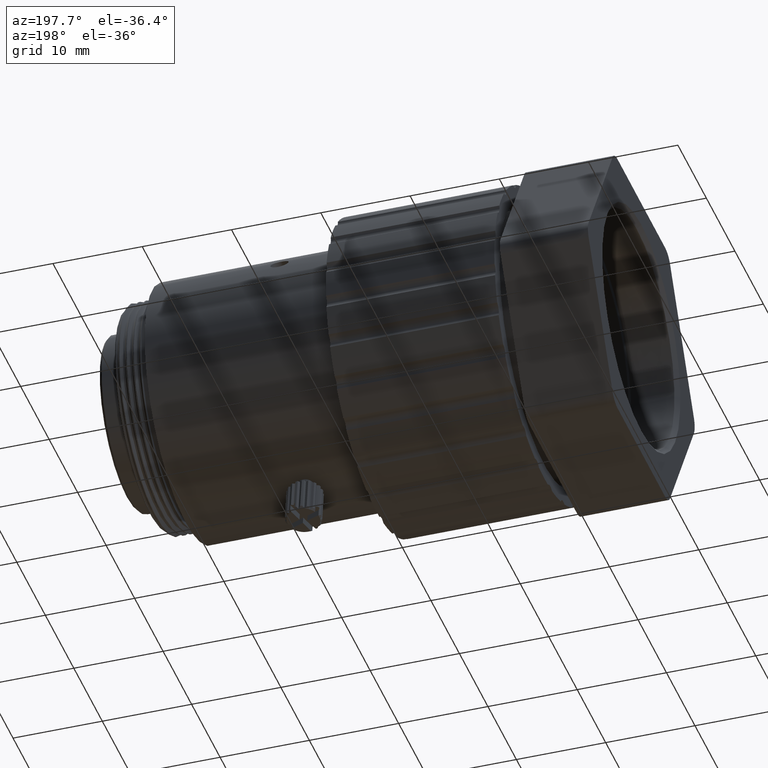
[diagram: clean part render]
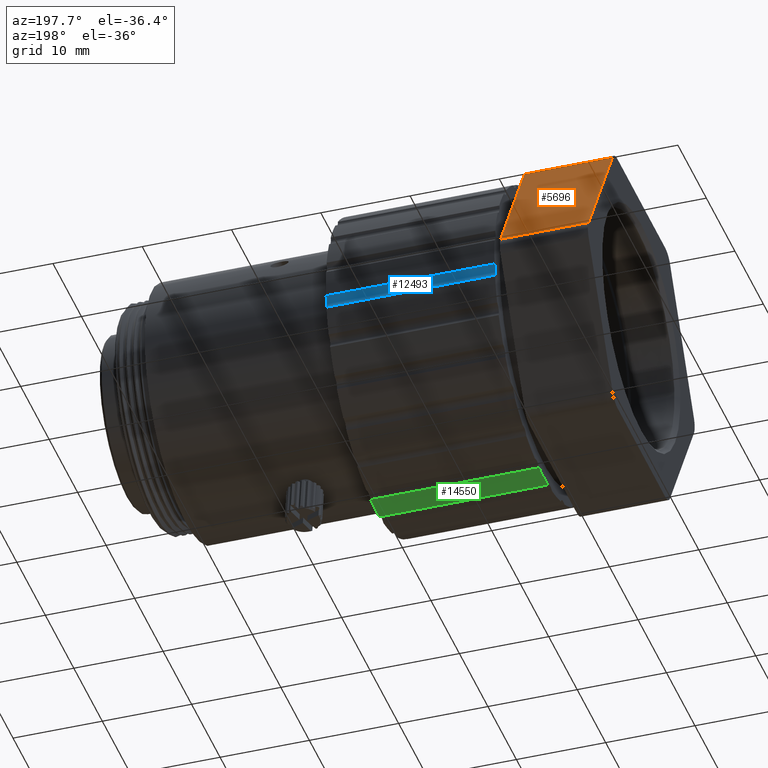
[diagram: same view with three faces highlighted in distinct colors, each labeled with its STEP entity id]
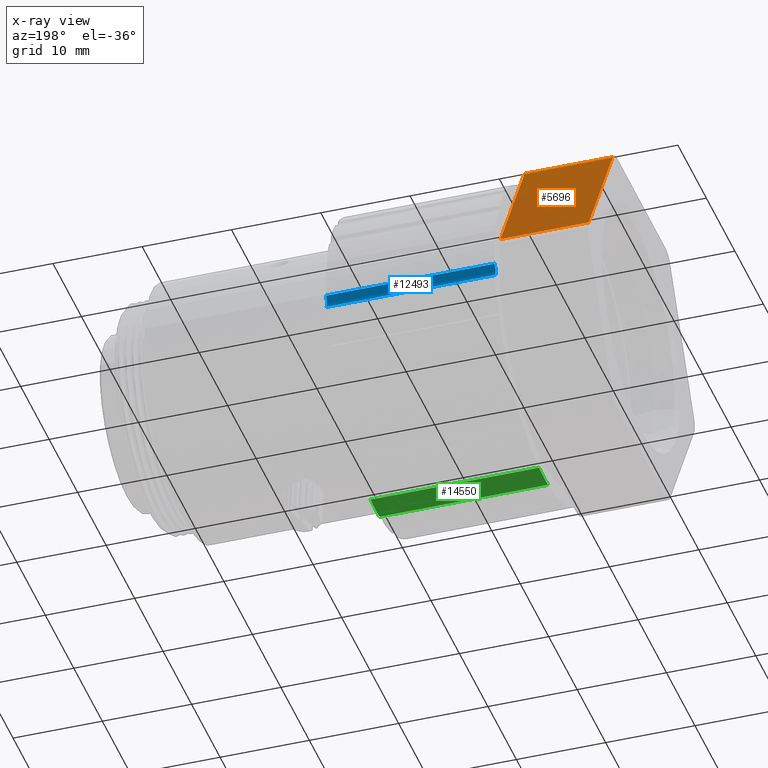
[diagram: x-ray of the same camera — body ghosted, the three highlighted faces saturated]
A machine part, auxiliary view with three faces highlighted in distinct colors.
The next image is the same camera in x-ray (body ghosted, the three faces saturated) — at least one of them is partly hidden behind the body in this view.
Their STEP definitions:

[orange] entity #5696 — the highlighted planar face has unit normal (0, 0.866, 0.5).
#570 = EDGE_CURVE ( 'NONE', #14892, #6627, #10362, .T. ) ;
#854 = DIRECTION ( 'NONE',  ( 1.000000000000000000, -0.000000000000000000, -0.000000000000000000 ) ) ;
#960 = CARTESIAN_POINT ( 'NONE',  ( -27.91612139076748988, 11.71228236505861275, 0.9999999999998759881 ) ) ;
#2005 = VECTOR ( 'NONE', #2338, 1000.000000000000114 ) ;
#2338 = DIRECTION ( 'NONE',  ( 0.000000000000000000, 0.5000000000000054401, -0.8660254037844354880 ) ) ;
#2811 = ORIENTED_EDGE ( 'NONE', *, *, #10207, .T. ) ;
#3116 = ORIENTED_EDGE ( 'NONE', *, *, #570, .F. ) ;
#3216 = VECTOR ( 'NONE', #12704, 1000.000000000000000 ) ;
#3509 = CARTESIAN_POINT ( 'NONE',  ( -27.91612139076748988, 3.340703461808480768, 15.50000000000068390 ) ) ;
#3680 = VECTOR ( 'NONE', #12952, 999.9999999999998863 ) ;
#4215 = ORIENTED_EDGE ( 'NONE', *, *, #12738, .T. ) ;
#4826 = CARTESIAN_POINT ( 'NONE',  ( -37.78612033146355742, 2.763353192619000254, 16.50000000000062172 ) ) ;
#4925 = EDGE_LOOP ( 'NONE', ( #7272, #4215, #2811, #3116 ) ) ;
#5657 = CARTESIAN_POINT ( 'NONE',  ( -37.78612033146355742, 11.71228236505861275, 0.9999999999999267253 ) ) ;
#5696 = ADVANCED_FACE ( 'NONE', ( #7144 ), #11877, .T. ) ;
#6413 = EDGE_CURVE ( 'NONE', #14892, #11731, #14348, .T. ) ;
#6627 = VERTEX_POINT ( 'NONE', #960 ) ;
#6738 = CARTESIAN_POINT ( 'NONE',  ( 22.49221125374778296, 3.340703461808480768, 15.50000000000077627 ) ) ;
#7144 = FACE_OUTER_BOUND ( 'NONE', #4925, .T. ) ;
#7272 = ORIENTED_EDGE ( 'NONE', *, *, #6413, .T. ) ;
#9460 = CARTESIAN_POINT ( 'NONE',  ( 22.49221125374778296, 2.763353192619000254, 16.50000000000062172 ) ) ;
#10207 = EDGE_CURVE ( 'NONE', #10264, #6627, #15256, .T. ) ;
#10264 = VERTEX_POINT ( 'NONE', #11929 ) ;
#10336 = VECTOR ( 'NONE', #854, 1000.000000000000000 ) ;
#10362 = LINE ( 'NONE', #13929, #10336 ) ;
#11731 = VERTEX_POINT ( 'NONE', #14084 ) ;
#11827 = AXIS2_PLACEMENT_3D ( 'NONE', #9460, #14274, #12958 ) ;
#11877 = PLANE ( 'NONE',  #11827 ) ;
#11929 = CARTESIAN_POINT ( 'NONE',  ( -27.91612139076748988, 3.340703461808480768, 15.50000000000061817 ) ) ;
#12704 = DIRECTION ( 'NONE',  ( 1.000000000000000000, 0.000000000000000000, -0.000000000000000000 ) ) ;
#12738 = EDGE_CURVE ( 'NONE', #11731, #10264, #12775, .T. ) ;
#12775 = LINE ( 'NONE', #6738, #3216 ) ;
#12952 = DIRECTION ( 'NONE',  ( 0.000000000000000000, -0.5000000000000085487, 0.8660254037844338226 ) ) ;
#12958 = DIRECTION ( 'NONE',  ( 0.000000000000000000, -0.5000000000000085487, 0.8660254037844338226 ) ) ;
#13929 = CARTESIAN_POINT ( 'NONE',  ( 22.49221125374778296, 11.71228236505861275, 1.000000000000165867 ) ) ;
#14084 = CARTESIAN_POINT ( 'NONE',  ( -37.78612033146355742, 3.340703461808480768, 15.50000000000065548 ) ) ;
#14274 = DIRECTION ( 'NONE',  ( 0.000000000000000000, 0.8660254037844338226, 0.5000000000000085487 ) ) ;
#14348 = LINE ( 'NONE', #4826, #3680 ) ;
#14892 = VERTEX_POINT ( 'NONE', #5657 ) ;
#15256 = LINE ( 'NONE', #3509, #2005 ) ;

[blue] entity #12493 — the highlighted cylindrical surface (edge-blend (fillet) strip) has radius 1 mm, axis along (-1, 0, -0).
#399 = DIRECTION ( 'NONE',  ( -1.000000000000000000, 0.000000000000000000, -0.000000000000000000 ) ) ;
#1267 = DIRECTION ( 'NONE',  ( 0.000000000000000000, -0.1454526080881509698, 0.9893652201287223003 ) ) ;
#1553 = EDGE_CURVE ( 'NONE', #6537, #8084, #5649, .T. ) ;
#2508 = ORIENTED_EDGE ( 'NONE', *, *, #14674, .F. ) ;
#2749 = DIRECTION ( 'NONE',  ( -1.000000000000000000, 0.000000000000000000, -0.000000000000000000 ) ) ;
#4436 = AXIS2_PLACEMENT_3D ( 'NONE', #14497, #2749, #1267 ) ;
#4505 = CARTESIAN_POINT ( 'NONE',  ( -8.031010005843386423, 10.68680943056676824, -1.325414921205414487 ) ) ;
#4582 = EDGE_LOOP ( 'NONE', ( #7630, #6403, #6985, #2508 ) ) ;
#4622 = DIRECTION ( 'NONE',  ( -1.000000000000000000, 0.000000000000000000, -0.000000000000000000 ) ) ;
#5333 = VECTOR ( 'NONE', #4622, 1000.000000000000000 ) ;
#5649 = LINE ( 'NONE', #15156, #5333 ) ;
#6235 = CIRCLE ( 'NONE', #8191, 1.000000000000124789 ) ;
#6403 = ORIENTED_EDGE ( 'NONE', *, *, #14571, .F. ) ;
#6537 = VERTEX_POINT ( 'NONE', #4505 ) ;
#6985 = ORIENTED_EDGE ( 'NONE', *, *, #1553, .F. ) ;
#7630 = ORIENTED_EDGE ( 'NONE', *, *, #11889, .F. ) ;
#7728 = DIRECTION ( 'NONE',  ( 1.000000000000000000, -0.000000000000000000, 0.000000000000000000 ) ) ;
#8084 = VERTEX_POINT ( 'NONE', #11392 ) ;
#8191 = AXIS2_PLACEMENT_3D ( 'NONE', #13162, #399, #8509 ) ;
#8289 = CYLINDRICAL_SURFACE ( 'NONE', #4436, 1.000000000000124789 ) ;
#8509 = DIRECTION ( 'NONE',  ( 0.000000000000000000, -0.1454526080881509698, 0.9893652201287223003 ) ) ;
#9216 = DIRECTION ( 'NONE',  ( 1.000000000000000000, -0.000000000000000000, 0.000000000000000000 ) ) ;
#9846 = FACE_OUTER_BOUND ( 'NONE', #4582, .T. ) ;
#9895 = LINE ( 'NONE', #9973, #11575 ) ;
#9973 = CARTESIAN_POINT ( 'NONE',  ( -32.35023582608875614, 10.52498016070835263, -2.716301155853972915 ) ) ;
#10386 = CARTESIAN_POINT ( 'NONE',  ( -26.91612139076693211, 11.31512142755219941, -2.103376381975663456 ) ) ;
#11392 = CARTESIAN_POINT ( 'NONE',  ( -26.91612139076693211, 10.68680943056676824, -1.325414921205414487 ) ) ;
#11412 = AXIS2_PLACEMENT_3D ( 'NONE', #10386, #9216, #13946 ) ;
#11575 = VECTOR ( 'NONE', #7728, 1000.000000000000000 ) ;
#11889 = EDGE_CURVE ( 'NONE', #14835, #13877, #9895, .T. ) ;
#12493 = ADVANCED_FACE ( 'NONE', ( #9846 ), #8289, .F. ) ;
#12833 = CARTESIAN_POINT ( 'NONE',  ( -8.031010005843386423, 10.52498016070835263, -2.716301155852862692 ) ) ;
#13162 = CARTESIAN_POINT ( 'NONE',  ( -8.031010005843386423, 11.31512142755219941, -2.103376381975663456 ) ) ;
#13629 = CARTESIAN_POINT ( 'NONE',  ( -26.91612139076693211, 10.52498016070835263, -2.716301155852862692 ) ) ;
#13647 = CIRCLE ( 'NONE', #11412, 1.000000000000124789 ) ;
#13877 = VERTEX_POINT ( 'NONE', #12833 ) ;
#13946 = DIRECTION ( 'NONE',  ( 0.000000000000000000, -0.1454526080881509698, 0.9893652201287223003 ) ) ;
#14497 = CARTESIAN_POINT ( 'NONE',  ( 17.28203147476259360, 11.31512142755219941, -2.103376381975663456 ) ) ;
#14571 = EDGE_CURVE ( 'NONE', #8084, #14835, #13647, .T. ) ;
#14674 = EDGE_CURVE ( 'NONE', #13877, #6537, #6235, .T. ) ;
#14835 = VERTEX_POINT ( 'NONE', #13629 ) ;
#15156 = CARTESIAN_POINT ( 'NONE',  ( -32.35023582608875614, 10.68680943056765642, -1.325414921206746754 ) ) ;

[green] entity #14550 — the highlighted cylindrical surface (partial cylindrical patch) has radius 17.5 mm, axis along (-1, 0, -0).
#291 = CARTESIAN_POINT ( 'NONE',  ( -26.91612139076737975, -4.912232258638127291, -17.40186575497404320 ) ) ;
#332 = VERTEX_POINT ( 'NONE', #13119 ) ;
#584 = CIRCLE ( 'NONE', #1300, 17.50000000000540012 ) ;
#874 = DIRECTION ( 'NONE',  ( -1.000000000000000000, 0.000000000000000000, -0.000000000000000000 ) ) ;
#1252 = DIRECTION ( 'NONE',  ( -1.000000000000000000, 0.000000000000000000, -0.000000000000000000 ) ) ;
#1280 = AXIS2_PLACEMENT_3D ( 'NONE', #6673, #874, #11468 ) ;
#1300 = AXIS2_PLACEMENT_3D ( 'NONE', #6119, #1252, #13232 ) ;
#1671 = LINE ( 'NONE', #7694, #11743 ) ;
#1962 = CYLINDRICAL_SURFACE ( 'NONE', #1280, 17.50000000000540012 ) ;
#2776 = CARTESIAN_POINT ( 'NONE',  ( -8.031010005843386423, -4.912232258638127291, -17.40186575497404320 ) ) ;
#3394 = VERTEX_POINT ( 'NONE', #291 ) ;
#3444 = VERTEX_POINT ( 'NONE', #2776 ) ;
#3454 = DIRECTION ( 'NONE',  ( 0.000000000000000000, -0.1454526080881581862, 0.9893652201287210790 ) ) ;
#3778 = EDGE_CURVE ( 'NONE', #12546, #332, #1671, .T. ) ;
#4451 = EDGE_CURVE ( 'NONE', #3394, #3444, #7479, .T. ) ;
#5055 = CARTESIAN_POINT ( 'NONE',  ( -8.031010005843386423, -8.088341170208401820, -17.44973567956698091 ) ) ;
#5775 = DIRECTION ( 'NONE',  ( 1.000000000000000000, -0.000000000000000000, 0.000000000000000000 ) ) ;
#5911 = ORIENTED_EDGE ( 'NONE', *, *, #3778, .T. ) ;
#6119 = CARTESIAN_POINT ( 'NONE',  ( -8.031010005843386423, -6.762926249001210977, 2.442490654175344389E-12 ) ) ;
#6346 = EDGE_CURVE ( 'NONE', #332, #3394, #14299, .T. ) ;
#6673 = CARTESIAN_POINT ( 'NONE',  ( -32.35023582608875614, -6.762926249001210977, 2.442490654175344389E-12 ) ) ;
#7479 = LINE ( 'NONE', #10032, #11233 ) ;
#7603 = AXIS2_PLACEMENT_3D ( 'NONE', #13820, #5775, #3454 ) ;
#7694 = CARTESIAN_POINT ( 'NONE',  ( -32.35023582608875614, -8.088341170209289999, -17.44973567956675709 ) ) ;
#8056 = ORIENTED_EDGE ( 'NONE', *, *, #6346, .T. ) ;
#8771 = DIRECTION ( 'NONE',  ( -1.000000000000000000, 0.000000000000000000, -0.000000000000000000 ) ) ;
#10032 = CARTESIAN_POINT ( 'NONE',  ( -32.35023582608875614, -4.912232258639903648, -17.40186575497426702 ) ) ;
#11056 = ORIENTED_EDGE ( 'NONE', *, *, #13712, .T. ) ;
#11233 = VECTOR ( 'NONE', #14763, 1000.000000000000000 ) ;
#11468 = DIRECTION ( 'NONE',  ( 0.000000000000000000, -0.1454526080881511640, 0.9893652201287220782 ) ) ;
#11743 = VECTOR ( 'NONE', #8771, 1000.000000000000000 ) ;
#12087 = EDGE_LOOP ( 'NONE', ( #11056, #5911, #8056, #12647 ) ) ;
#12546 = VERTEX_POINT ( 'NONE', #5055 ) ;
#12559 = FACE_OUTER_BOUND ( 'NONE', #12087, .T. ) ;
#12647 = ORIENTED_EDGE ( 'NONE', *, *, #4451, .T. ) ;
#13119 = CARTESIAN_POINT ( 'NONE',  ( -26.91612139076693211, -8.088341170208401820, -17.44973567956698091 ) ) ;
#13232 = DIRECTION ( 'NONE',  ( 0.000000000000000000, -0.1454526080881511640, 0.9893652201287220782 ) ) ;
#13712 = EDGE_CURVE ( 'NONE', #3444, #12546, #584, .T. ) ;
#13820 = CARTESIAN_POINT ( 'NONE',  ( -26.91612139076693211, -6.762926249001210977, 2.442490654175344389E-12 ) ) ;
#14299 = CIRCLE ( 'NONE', #7603, 17.50000000000540012 ) ;
#14550 = ADVANCED_FACE ( 'NONE', ( #12559 ), #1962, .T. ) ;
#14763 = DIRECTION ( 'NONE',  ( 1.000000000000000000, -0.000000000000000000, 0.000000000000000000 ) ) ;